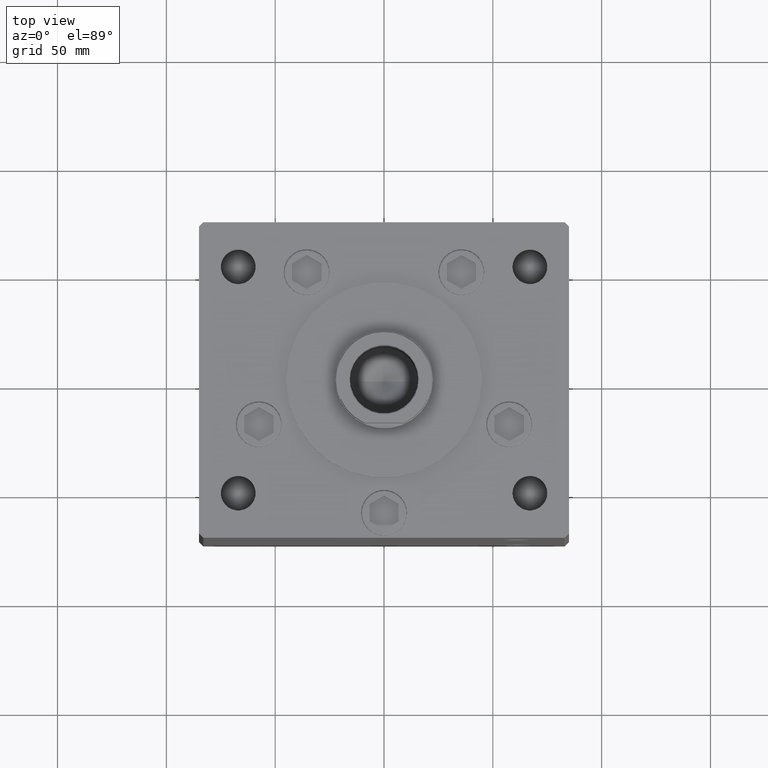
[diagram: clean part render]
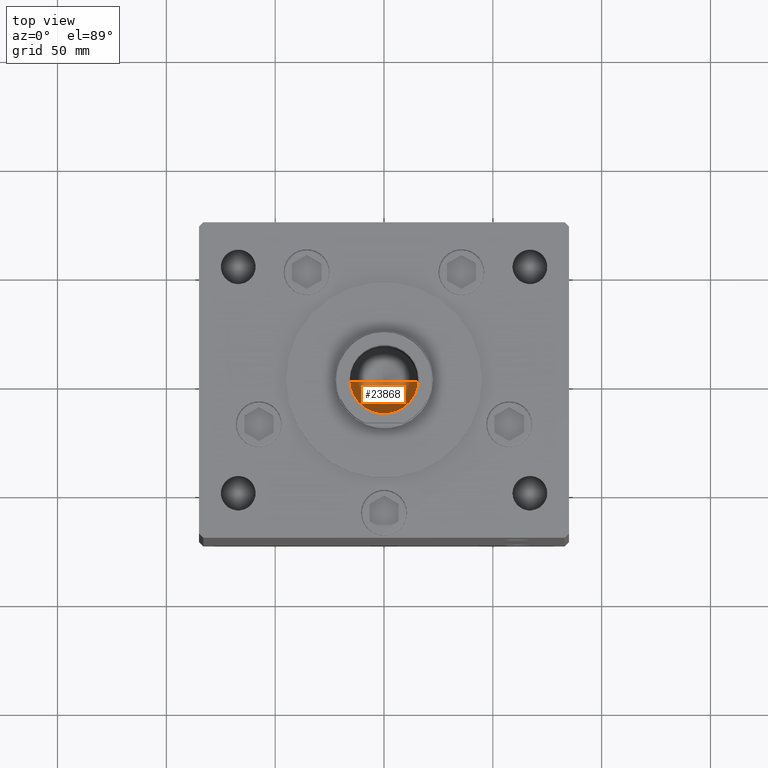
[diagram: same view with one face highlighted and labeled with its STEP entity id]
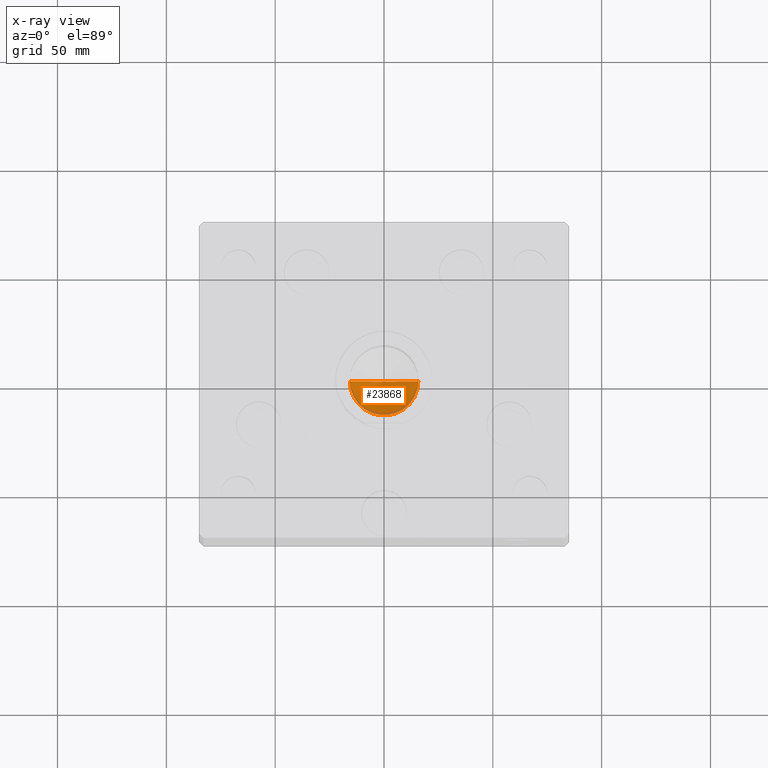
[diagram: x-ray of the same camera — body ghosted, the highlighted face saturated]
A machine part, top view. The second image highlights one B-rep face of the part: STEP entity #23868.
The next image is the same camera in x-ray: the body ghosted, the highlighted face saturated — about 8% of this face is hidden behind the body in this view.
In plain terms, the highlighted conical surface has half-angle 59 deg.
Its self-contained STEP definition (entity closure, byte-faithful):
#639 = DIRECTION ( 'NONE',  ( -0.8571673007021118895, 1.049727191138618079E-16, 0.5150380749100549327 ) ) ;
#1654 = EDGE_CURVE ( 'NONE', #5947, #34959, #32283, .T. ) ;
#4109 = EDGE_LOOP ( 'NONE', ( #15923, #10792, #33896 ) ) ;
#4727 = CONICAL_SURFACE ( 'NONE', #47659, 15.74999999999998934, 1.029744258676653645 ) ;
#5947 = VERTEX_POINT ( 'NONE', #35058 ) ;
#10792 = ORIENTED_EDGE ( 'NONE', *, *, #1654, .T. ) ;
#13197 = VECTOR ( 'NONE', #32134, 1000.000000000000000 ) ;
#15923 = ORIENTED_EDGE ( 'NONE', *, *, #32112, .F. ) ;
#16349 = DIRECTION ( 'NONE',  ( 1.000000000000000000, 0.000000000000000000, 0.000000000000000000 ) ) ;
#23043 = CARTESIAN_POINT ( 'NONE',  ( 15.74999999999998934, 0.000000000000000000, 158.0000000000000284 ) ) ;
#23466 = CARTESIAN_POINT ( 'NONE',  ( 15.74999999999998934, 0.000000000000000000, 158.0000000000000284 ) ) ;
#23868 = ADVANCED_FACE ( 'NONE', ( #45190 ), #4727, .F. ) ;
#24927 = DIRECTION ( 'NONE',  ( 1.000000000000000000, 0.000000000000000000, 0.000000000000000000 ) ) ;
#25058 = DIRECTION ( 'NONE',  ( -0.000000000000000000, -0.000000000000000000, 1.000000000000000000 ) ) ;
#26170 = CARTESIAN_POINT ( 'NONE',  ( -15.74999999999998934, 1.928818708657080161E-15, 158.0000000000000284 ) ) ;
#30231 = AXIS2_PLACEMENT_3D ( 'NONE', #48235, #25058, #16349 ) ;
#32112 = EDGE_CURVE ( 'NONE', #5947, #39488, #39259, .T. ) ;
#32134 = DIRECTION ( 'NONE',  ( 0.8571673007021118895, 0.000000000000000000, 0.5150380749100549327 ) ) ;
#32283 = LINE ( 'NONE', #41218, #39706 ) ;
#33896 = ORIENTED_EDGE ( 'NONE', *, *, #41792, .T. ) ;
#34959 = VERTEX_POINT ( 'NONE', #26170 ) ;
#35058 = CARTESIAN_POINT ( 'NONE',  ( -1.480675244360640996E-14, 0.000000000000000000, 148.5364452503159498 ) ) ;
#39259 = LINE ( 'NONE', #23466, #13197 ) ;
#39488 = VERTEX_POINT ( 'NONE', #23043 ) ;
#39706 = VECTOR ( 'NONE', #639, 1000.000000000000000 ) ;
#40736 = CARTESIAN_POINT ( 'NONE',  ( 0.000000000000000000, 0.000000000000000000, 158.0000000000000284 ) ) ;
#41218 = CARTESIAN_POINT ( 'NONE',  ( -15.74999999999998934, 1.928818708657080161E-15, 158.0000000000000284 ) ) ;
#41792 = EDGE_CURVE ( 'NONE', #34959, #39488, #46199, .T. ) ;
#45190 = FACE_OUTER_BOUND ( 'NONE', #4109, .T. ) ;
#46199 = CIRCLE ( 'NONE', #30231, 15.74999999999998934 ) ;
#47659 = AXIS2_PLACEMENT_3D ( 'NONE', #40736, #49408, #24927 ) ;
#48235 = CARTESIAN_POINT ( 'NONE',  ( 0.000000000000000000, 0.000000000000000000, 158.0000000000000284 ) ) ;
#49408 = DIRECTION ( 'NONE',  ( -0.000000000000000000, -0.000000000000000000, 1.000000000000000000 ) ) ;